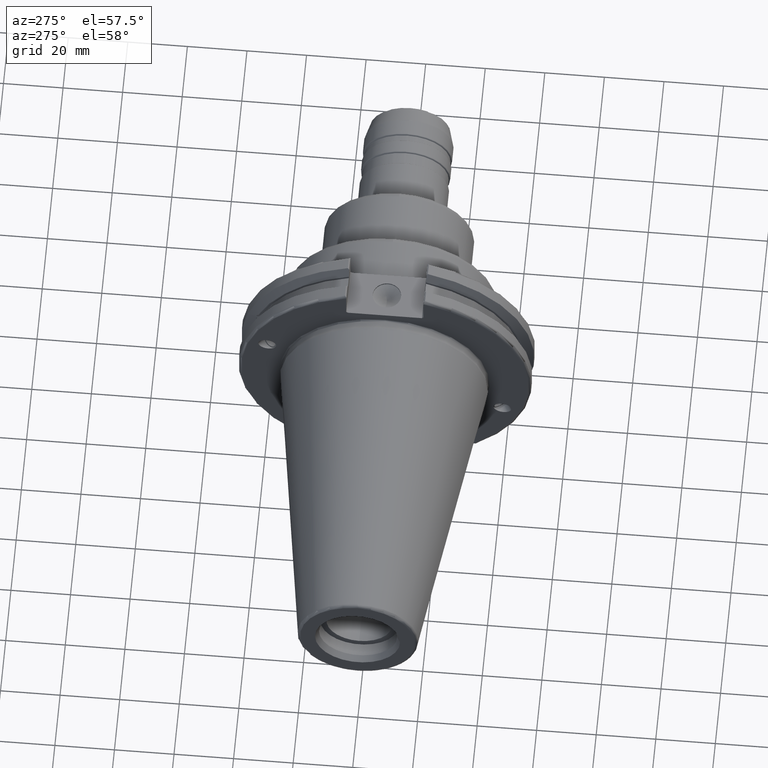
[diagram: clean part render]
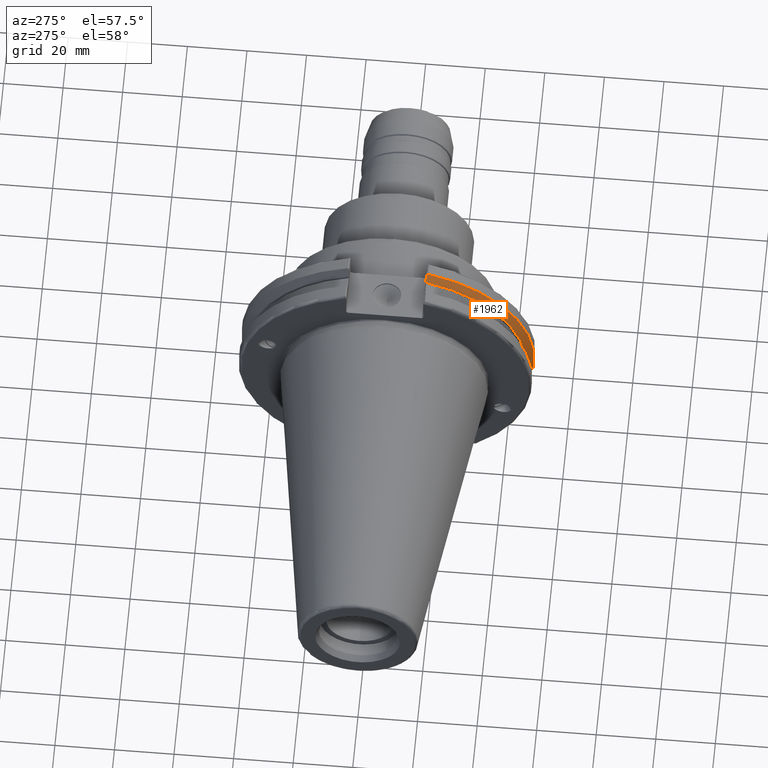
[diagram: same view with one face highlighted and labeled with its STEP entity id]
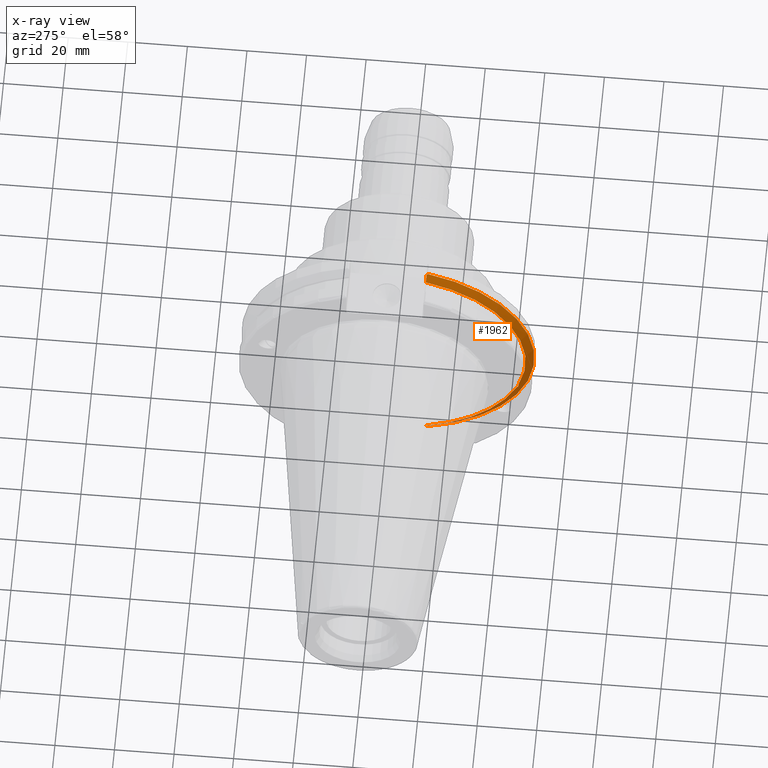
[diagram: x-ray of the same camera — body ghosted, the highlighted face saturated]
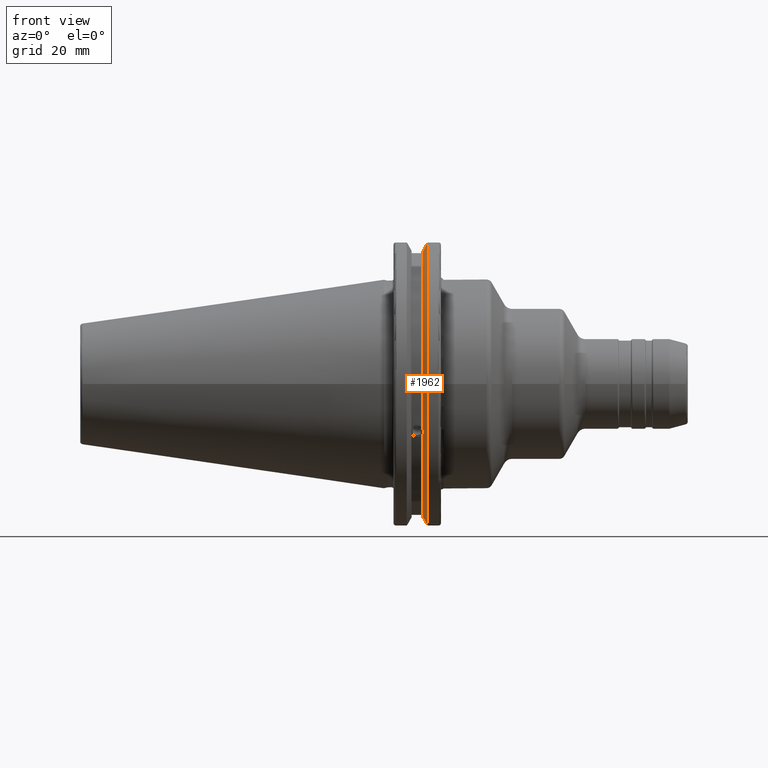
[diagram: same view with one face highlighted and labeled with its STEP entity id]
A machine part, auxiliary view. The second image highlights one B-rep face of the part: STEP entity #1962.
The next image is the same camera in x-ray: the body ghosted, the highlighted face saturated — about 4% of this face is hidden behind the body in this view.
A second angle (front view) of the same face is appended — the face is thin or edge-on in the first view.
In plain terms, the highlighted conical surface has half-angle 60 deg.
Its self-contained STEP definition (entity closure, byte-faithful):
#15=(
BOUNDED_CURVE()
B_SPLINE_CURVE(2,(#3417,#3418,#3419),.UNSPECIFIED.,.F.,.F.)
B_SPLINE_CURVE_WITH_KNOTS((3,3),(0.,0.275823910673374),.UNSPECIFIED.)
CURVE()
GEOMETRIC_REPRESENTATION_ITEM()
RATIONAL_B_SPLINE_CURVE((1.,1.00038235574978,1.00012873636953))
REPRESENTATION_ITEM('')
);
#16=(
BOUNDED_CURVE()
B_SPLINE_CURVE(2,(#3421,#3422,#3423),.UNSPECIFIED.,.F.,.F.)
B_SPLINE_CURVE_WITH_KNOTS((3,3),(0.,0.0648240472896156),.UNSPECIFIED.)
CURVE()
GEOMETRIC_REPRESENTATION_ITEM()
RATIONAL_B_SPLINE_CURVE((1.,1.00011477674884,1.00019140646027))
REPRESENTATION_ITEM('')
);
#17=(
BOUNDED_CURVE()
B_SPLINE_CURVE(2,(#3427,#3428,#3429),.UNSPECIFIED.,.F.,.F.)
B_SPLINE_CURVE_WITH_KNOTS((3,3),(0.325260944932494,0.3900849922222),
 .UNSPECIFIED.)
CURVE()
GEOMETRIC_REPRESENTATION_ITEM()
RATIONAL_B_SPLINE_CURVE((1.00019140645961,1.00011477674844,1.))
REPRESENTATION_ITEM('')
);
#18=(
BOUNDED_CURVE()
B_SPLINE_CURVE(2,(#3431,#3432,#3433),.UNSPECIFIED.,.F.,.F.)
B_SPLINE_CURVE_WITH_KNOTS((3,3),(0.0558332664531015,0.331657177124503),
 .UNSPECIFIED.)
CURVE()
GEOMETRIC_REPRESENTATION_ITEM()
RATIONAL_B_SPLINE_CURVE((1.00012873636668,1.00038235574129,1.))
REPRESENTATION_ITEM('')
);
#120=B_SPLINE_CURVE_WITH_KNOTS('',3,(#3327,#3328,#3329,#3330,#3331,#3332,
#3333,#3334),.UNSPECIFIED.,.F.,.F.,(4,2,2,4),(0.42671286835872,0.441644498666905,
0.480313313223129,0.518982127779353),.UNSPECIFIED.);
#124=B_SPLINE_CURVE_WITH_KNOTS('',3,(#3389,#3390,#3391,#3392,#3393,#3394,
#3395,#3396),.UNSPECIFIED.,.F.,.F.,(4,2,2,4),(0.518982127779353,0.557650942335576,
0.5963197568918,0.611251387199985),.UNSPECIFIED.);
#160=CONICAL_SURFACE('',#2187,47.8172386482472,1.0471975511966);
#217=FACE_OUTER_BOUND('',#338,.T.);
#338=EDGE_LOOP('',(#1529,#1530,#1531,#1532,#1533,#1534,#1535,#1536,#1537));
#716=CIRCLE('',#2188,46.4219772964944);
#717=CIRCLE('',#2189,49.2125);
#718=CIRCLE('',#2190,46.4219772964944);
#847=VERTEX_POINT('',#3324);
#848=VERTEX_POINT('',#3326);
#855=VERTEX_POINT('',#3387);
#861=VERTEX_POINT('',#3414);
#862=VERTEX_POINT('',#3416);
#863=VERTEX_POINT('',#3420);
#864=VERTEX_POINT('',#3424);
#865=VERTEX_POINT('',#3426);
#866=VERTEX_POINT('',#3430);
#1089=EDGE_CURVE('',#848,#847,#120,.T.);
#1097=EDGE_CURVE('',#847,#855,#124,.T.);
#1105=EDGE_CURVE('',#855,#861,#716,.T.);
#1106=EDGE_CURVE('',#861,#862,#15,.T.);
#1107=EDGE_CURVE('',#863,#862,#16,.T.);
#1108=EDGE_CURVE('',#864,#863,#717,.T.);
#1109=EDGE_CURVE('',#865,#864,#17,.T.);
#1110=EDGE_CURVE('',#865,#866,#18,.T.);
#1111=EDGE_CURVE('',#866,#848,#718,.T.);
#1529=ORIENTED_EDGE('',*,*,#1089,.T.);
#1530=ORIENTED_EDGE('',*,*,#1097,.T.);
#1531=ORIENTED_EDGE('',*,*,#1105,.T.);
#1532=ORIENTED_EDGE('',*,*,#1106,.T.);
#1533=ORIENTED_EDGE('',*,*,#1107,.F.);
#1534=ORIENTED_EDGE('',*,*,#1108,.F.);
#1535=ORIENTED_EDGE('',*,*,#1109,.F.);
#1536=ORIENTED_EDGE('',*,*,#1110,.T.);
#1537=ORIENTED_EDGE('',*,*,#1111,.T.);
#1962=ADVANCED_FACE('',(#217),#160,.T.);
#2187=AXIS2_PLACEMENT_3D('',#3413,#2610,#2611);
#2188=AXIS2_PLACEMENT_3D('',#3415,#2612,#2613);
#2189=AXIS2_PLACEMENT_3D('',#3425,#2614,#2615);
#2190=AXIS2_PLACEMENT_3D('',#3434,#2616,#2617);
#2610=DIRECTION('center_axis',(1.,0.,0.));
#2611=DIRECTION('ref_axis',(0.,-1.,-1.22464679914735E-16));
#2612=DIRECTION('center_axis',(1.,0.,0.));
#2613=DIRECTION('ref_axis',(0.,0.,-1.));
#2614=DIRECTION('center_axis',(1.,0.,0.));
#2615=DIRECTION('ref_axis',(0.,0.,-1.));
#2616=DIRECTION('center_axis',(1.,0.,0.));
#2617=DIRECTION('ref_axis',(0.,0.,-1.));
#3324=CARTESIAN_POINT('',(13.2341,-43.923494649906,-15.9868446375166));
#3326=CARTESIAN_POINT('',(13.0491,-43.9096390749305,-15.0646464421033));
#3327=CARTESIAN_POINT('Ctrl Pts',(13.0491,-43.9096390749305,-15.0646464421033));
#3328=CARTESIAN_POINT('Ctrl Pts',(13.0660815609661,-43.9250360001461,-15.1104047527575));
#3329=CARTESIAN_POINT('Ctrl Pts',(13.0821132459668,-43.9385582852181,-15.1564111356409));
#3330=CARTESIAN_POINT('Ctrl Pts',(13.1358132615496,-43.9797830409459,-15.3217566390708));
#3331=CARTESIAN_POINT('Ctrl Pts',(13.1719838933644,-43.9989016655819,-15.4570249042868));
#3332=CARTESIAN_POINT('Ctrl Pts',(13.2212913174802,-43.9931221605126,-15.7289849146254));
#3333=CARTESIAN_POINT('Ctrl Pts',(13.2341,-43.9675796948952,-15.8657219718732));
#3334=CARTESIAN_POINT('Ctrl Pts',(13.2341,-43.923494649906,-15.9868446375166));
#3387=CARTESIAN_POINT('',(13.0491,-43.3201030900029,-16.6843832486479));
#3389=CARTESIAN_POINT('Ctrl Pts',(13.2341,-43.923494649906,-15.9868446375166));
#3390=CARTESIAN_POINT('Ctrl Pts',(13.2341,-43.8794096049169,-16.10796730316));
#3391=CARTESIAN_POINT('Ctrl Pts',(13.2212913174802,-43.8110833825827,-16.2291323464527));
#3392=CARTESIAN_POINT('Ctrl Pts',(13.1719838933644,-43.6406982153492,-16.441180795372));
#3393=CARTESIAN_POINT('Ctrl Pts',(13.1358132615496,-43.5391037343221,-16.5325130832406));
#3394=CARTESIAN_POINT('Ctrl Pts',(13.0821132459668,-43.4012416983557,-16.6326763251437));
#3395=CARTESIAN_POINT('Ctrl Pts',(13.0660815609661,-43.3613106941341,-16.6592273018006));
#3396=CARTESIAN_POINT('Ctrl Pts',(13.0491,-43.3201030900029,-16.6843832486479));
#3413=CARTESIAN_POINT('Origin',(13.8546545170244,0.,0.));
#3414=CARTESIAN_POINT('',(13.0491,-12.95,-44.5791147973604));
#3415=CARTESIAN_POINT('Origin',(13.0491,0.,0.));
#3416=CARTESIAN_POINT('',(14.3818103943757,-12.95,-46.9780755322917));
#3417=CARTESIAN_POINT('Ctrl Pts',(13.0491,-12.95,-44.5791147973604));
#3418=CARTESIAN_POINT('Ctrl Pts',(13.697995509466,-12.95,-45.749496680259));
#3419=CARTESIAN_POINT('Ctrl Pts',(14.3818103943757,-12.95,-46.9780755322917));
#3420=CARTESIAN_POINT('',(14.6602090340487,-13.4317035994433,-47.3440544806494));
#3421=CARTESIAN_POINT('Ctrl Pts',(14.6602090340487,-13.4317035994433,-47.3440544806494));
#3422=CARTESIAN_POINT('Ctrl Pts',(14.5199310333617,-13.1896660169964,-47.1601640966263));
#3423=CARTESIAN_POINT('Ctrl Pts',(14.3818103943757,-12.95,-46.9780755322917));
#3424=CARTESIAN_POINT('',(14.6602090340487,-13.4317035994433,47.3440544806494));
#3425=CARTESIAN_POINT('Origin',(14.6602090340487,0.,0.));
#3426=CARTESIAN_POINT('',(14.3818103943757,-12.95,46.9780755322918));
#3427=CARTESIAN_POINT('Ctrl Pts',(14.3818103943757,-12.95,46.9780755322918));
#3428=CARTESIAN_POINT('Ctrl Pts',(14.5199310333617,-13.1896660169966,47.1601640966264));
#3429=CARTESIAN_POINT('Ctrl Pts',(14.6602090340487,-13.4317035994433,47.3440544806494));
#3430=CARTESIAN_POINT('',(13.0491,-12.95,44.5791147973604));
#3431=CARTESIAN_POINT('Ctrl Pts',(14.3818103943757,-12.95,46.9780755322918));
#3432=CARTESIAN_POINT('Ctrl Pts',(13.6979955094846,-12.95,45.7494966802924));
#3433=CARTESIAN_POINT('Ctrl Pts',(13.0491,-12.95,44.5791147973604));
#3434=CARTESIAN_POINT('Origin',(13.0491,0.,0.));